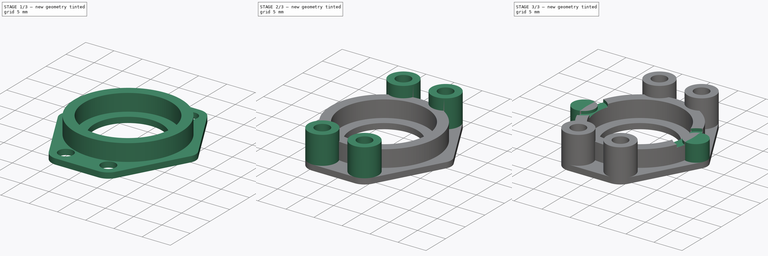
[diagram: build sequence overview — one tinted view per stage of 3, left to right]
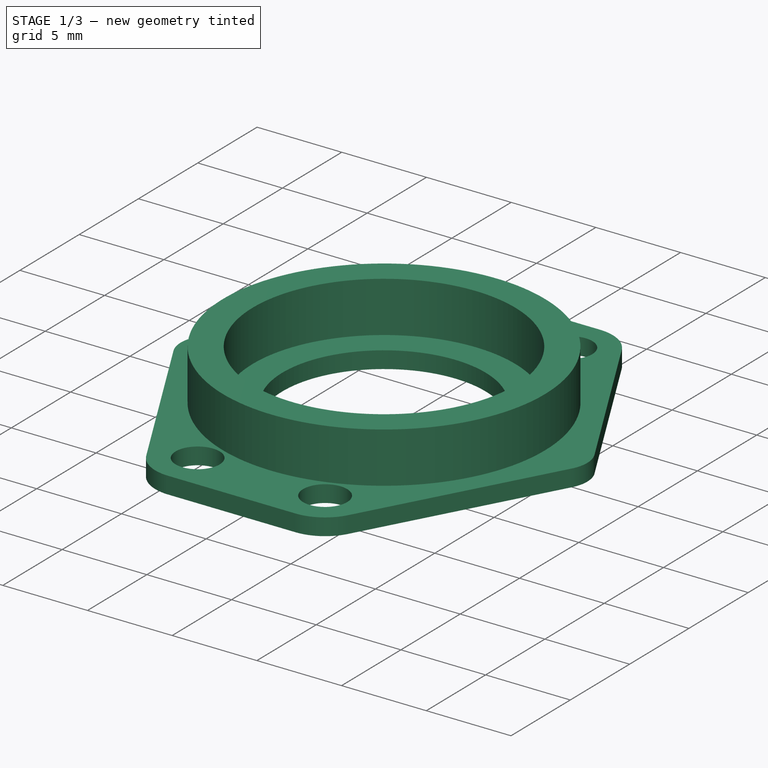
[diagram: stage 1 of 3 — iso view after this stage's code; geometry added in this stage tinted green]
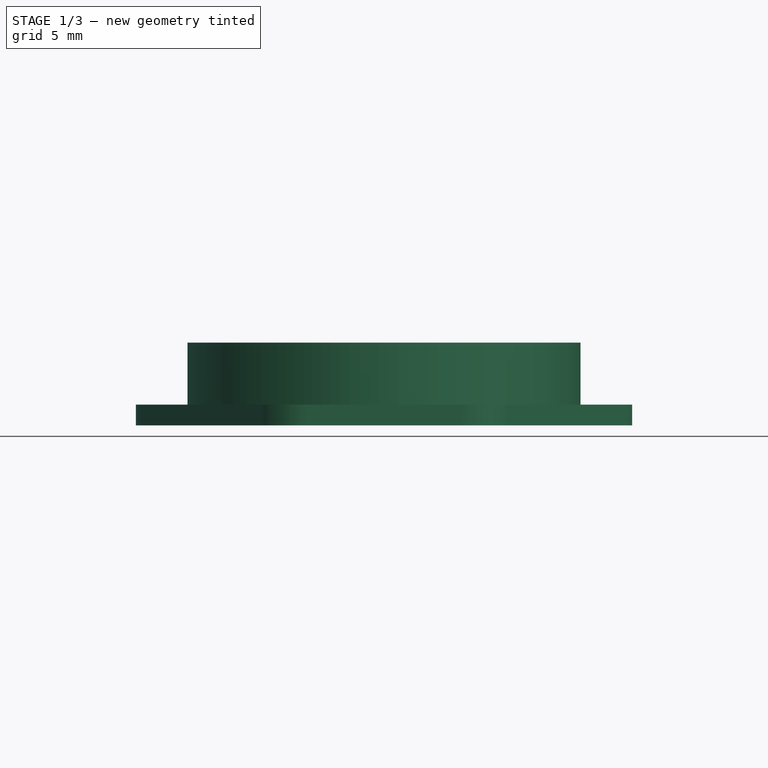
[diagram: stage 1 of 3 — front view after this stage's code; geometry added in this stage tinted green]
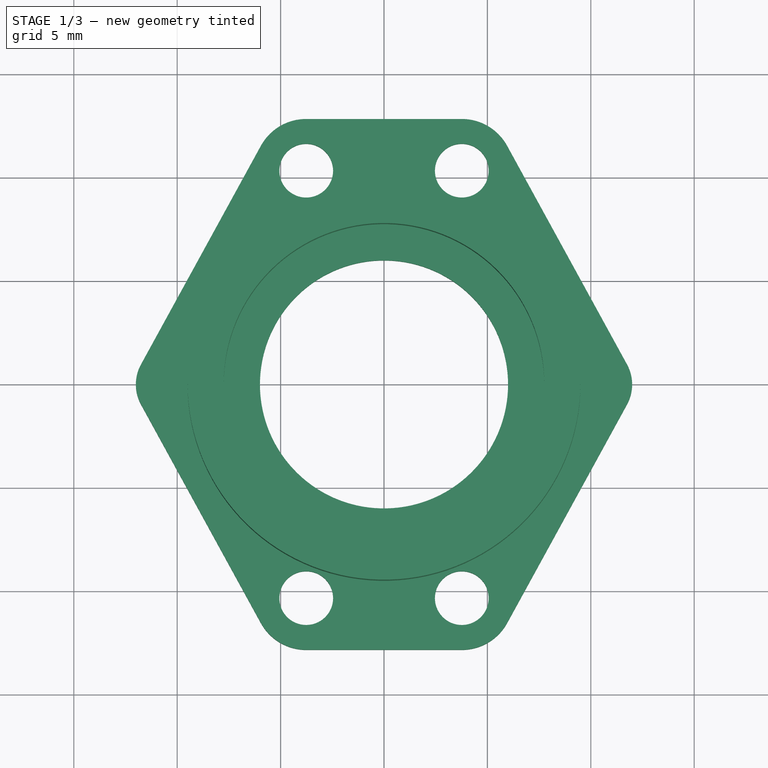
[diagram: stage 1 of 3 — top view after this stage's code; geometry added in this stage tinted green]
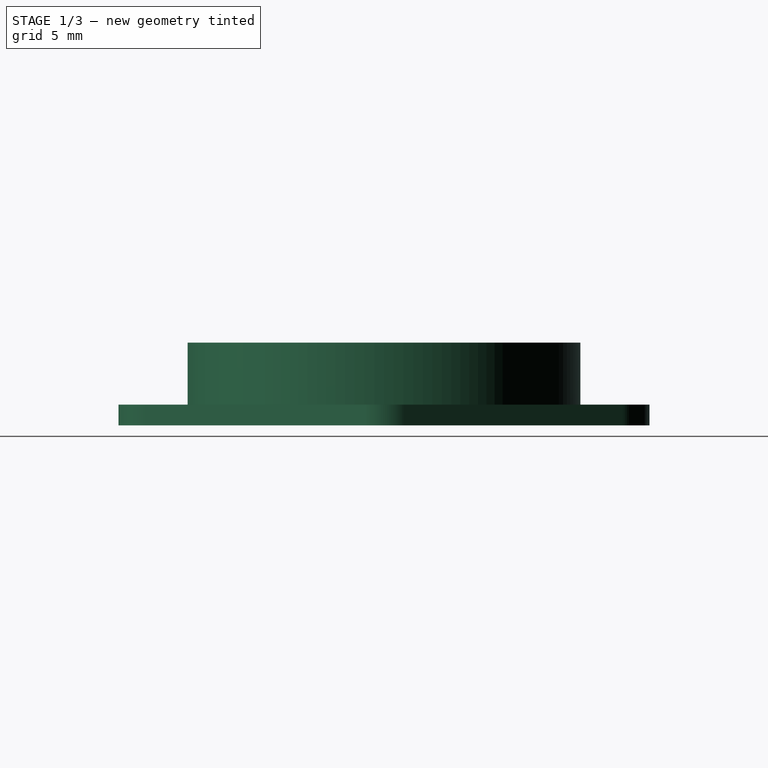
[diagram: stage 1 of 3 — right view after this stage's code; geometry added in this stage tinted green]
FCSTD DOCUMENT  (FreeCAD 0.21R33668 +26 (Git))
Label: magnet_mounter
License: All rights reserved
LicenseURL: http://en.wikipedia.org/wiki/All_rights_reserved
objects: Sketcher::SketchObject×5, PartDesign::Pad×4, PartDesign::Pocket×1, PartDesign::Body×1
note: 16 computed .brp shape members not serialized (recipe doc carries the construction recipe); baked Part::Feature solids carry a one-line shape summary decoded from their .brp

FEATURE [Sketcher::SketchObject] Sketch
  FullyConstrained = true
  MapMode = 5
  Support = -> [XY_Plane]
  sketch-geometry (24):
    g0: Circle CenterX=0 CenterY=0 CenterZ=0 NormalX=0 NormalY=0 NormalZ=1 AngleXU=0 Radius=6
    g1: Circle CenterX=0 CenterY=0 CenterZ=0 NormalX=0 NormalY=0 NormalZ=1 AngleXU=0 Radius=4.5
    g2: Circle CenterX=0 CenterY=0 CenterZ=0 NormalX=0 NormalY=0 NormalZ=1 AngleXU=0 Radius=11
    g3: LineSegment StartX=-3.76222 StartY=10.3366 StartZ=0 EndX=3.76222 EndY=-10.3366 EndZ=0
    g4: LineSegment StartX=3.76222 StartY=10.3366 StartZ=0 EndX=-3.76222 EndY=-10.3366 EndZ=0
    g5: Circle CenterX=0 CenterY=0 CenterZ=0 NormalX=0 NormalY=0 NormalZ=1 AngleXU=0 Radius=10
    g6: LineSegment StartX=-10 StartY=0 StartZ=0 EndX=10 EndY=0 EndZ=0
    g7: Circle CenterX=3.76222 CenterY=10.3366 CenterZ=0 NormalX=0 NormalY=0 NormalZ=1 AngleXU=0 Radius=1.3
    g8: LineSegment StartX=-3.76222 StartY=10.3366 StartZ=0 EndX=3.76222 EndY=10.3366 EndZ=0
    g9: Circle CenterX=-3.76222 CenterY=10.3366 CenterZ=0 NormalX=0 NormalY=0 NormalZ=1 AngleXU=0 Radius=1.3
    g10: Circle CenterX=-3.76222 CenterY=-10.3366 CenterZ=0 NormalX=0 NormalY=0 NormalZ=1 AngleXU=0 Radius=1.3
    g11: Circle CenterX=3.76222 CenterY=-10.3366 CenterZ=0 NormalX=0 NormalY=0 NormalZ=1 AngleXU=0 Radius=1.3
    g12: ArcOfCircle CenterX=-10 CenterY=0 CenterZ=0 NormalX=0 NormalY=0 NormalZ=1 AngleXU=0 Radius=2 StartAngle=2.64006 EndAngle=3.64313
    g13: ArcOfCircle CenterX=10 CenterY=0 CenterZ=0 NormalX=0 NormalY=0 NormalZ=1 AngleXU=0 Radius=2 StartAngle=5.78165 EndAngle=6.78472
    g14: ArcOfCircle CenterX=-3.76222 CenterY=10.3366 CenterZ=0 NormalX=0 NormalY=0 NormalZ=1 AngleXU=0 Radius=2.5 StartAngle=1.5708 EndAngle=2.64006
    g15: ArcOfCircle CenterX=3.76222 CenterY=10.3366 CenterZ=0 NormalX=0 NormalY=0 NormalZ=1 AngleXU=0 Radius=2.5 StartAngle=0.501536 EndAngle=1.5708
    g16: ArcOfCircle CenterX=3.76222 CenterY=-10.3366 CenterZ=0 NormalX=0 NormalY=0 NormalZ=1 AngleXU=0 Radius=2.5 StartAngle=4.71239 EndAngle=5.78165
    g17: ArcOfCircle CenterX=-3.76222 CenterY=-10.3366 CenterZ=0 NormalX=0 NormalY=0 NormalZ=1 AngleXU=0 Radius=2.5 StartAngle=3.64313 EndAngle=4.71239
    g18: LineSegment StartX=-3.76222 StartY=12.8366 StartZ=0 EndX=3.76222 EndY=12.8366 EndZ=0
    g19: LineSegment StartX=5.95433 StartY=11.5386 StartZ=0 EndX=11.7537 EndY=0.961546 EndZ=0
    g20: LineSegment StartX=11.7537 StartY=-0.961546 StartZ=0 EndX=5.95433 EndY=-11.5386 EndZ=0
    g21: LineSegment StartX=3.76222 StartY=-12.8366 StartZ=0 EndX=-3.76222 EndY=-12.8366 EndZ=0
    g22: LineSegment StartX=-5.95433 StartY=-11.5386 StartZ=0 EndX=-11.7537 EndY=-0.961546 EndZ=0
    g23: LineSegment StartX=-11.7537 StartY=0.961546 StartZ=0 EndX=-5.95433 EndY=11.5386 EndZ=0
  constraints (54):
    c: Coincident(g0,g-1)
    c: Diameter(g0) = 12
    c: Coincident(g1,g0)
    c: Diameter(g1) = 9
    c: Coincident(g2,g0)
    c: Diameter(g2) = 22
    c: PointOnObject(g3,g2)
    c: PointOnObject(g3,g2)
    c: PointOnObject(g4,g2)
    c: PointOnObject(g4,g2)
    c: Coincident(g5,g0)
    c: Diameter(g5) = 20
    c: PointOnObject(g0,g3)
    c: PointOnObject(g0,g4)
    c: PointOnObject(g6,g5)
    c: PointOnObject(g6,g5)
    c: PointOnObject(g0,g6)
    c: Horizontal(g6)
    c: Coincident(g7,g4)
    c: Diameter(g7) = 2.6
    c: Angle(g-2,g3) = 0.349066
    c: Coincident(g8,g3)
    c: Coincident(g8,g7)
    c: Horizontal(g8)
    c: Coincident(g9,g3)
    c: Coincident(g10,g4)
    c: Coincident(g11,g3)
    c: Equal(g11,g10)
    c: Equal(g10,g9)
    c: Equal(g9,g7)
    c: Coincident(g12,g6)
    c: Coincident(g13,g6)
    c: Equal(g13,g12)
    c: Diameter(g13) = 4
    c: Coincident(g14,g9)
    c: Coincident(g15,g7)
    c: Coincident(g16,g11)
    c: Coincident(g17,g10)
    c: Equal(g17,g16)
    c: Equal(g16,g15)
    c: Equal(g15,g14)
    c: Diameter(g15) = 5
    c: Tangent(g15,g19) = 1.5708
    c: Tangent(g15,g18) = 1.5708
    c: Tangent(g13,g19) = 1.5708
    c: Tangent(g13,g20) = 1.5708
    c: Tangent(g16,g20) = 1.5708
    c: Tangent(g16,g21) = 1.5708
    c: Tangent(g17,g21) = 1.5708
    c: Tangent(g17,g22) = 1.5708
    c: Tangent(g12,g22) = 1.5708
    c: Tangent(g12,g23) = 1.5708
    c: Tangent(g14,g23) = 1.5708
    c: Tangent(g14,g18) = 1.5708
FEATURE [PartDesign::Pad] Pad
  Direction = (0,0,1)
  Length = 1
  Length2 = 10
  Profile = -> Sketch
  ReferenceAxis = -> Sketch [N_Axis]
  Type = 0
FEATURE [Sketcher::SketchObject] Sketch001
  ExternalGeometry = -> [Pad]
  FullyConstrained = true
  MapMode = 5
  Placement = pos=(0,0,1) rot=(0,0,1;0rad)
  Support = -> [Pad]
  sketch-geometry (2):
    g0: Circle CenterX=0 CenterY=0 CenterZ=0 NormalX=0 NormalY=0 NormalZ=1 AngleXU=0 Radius=9.5
    g1: Circle CenterX=0 CenterY=0 CenterZ=0 NormalX=0 NormalY=0 NormalZ=1 AngleXU=0 Radius=7.75
  constraints (4):
    c: Coincident(g0,g-1)
    c: Diameter(g0) = 19
    c: Coincident(g1,g0)
    c: Diameter(g1) = 15.5
FEATURE [PartDesign::Pad] Pad001
  BaseFeature = -> Pad
  Direction = (0,0,1)
  Length = 3
  Length2 = 10
  Profile = -> Sketch001
  ReferenceAxis = -> Sketch001 [N_Axis]
  Type = 0
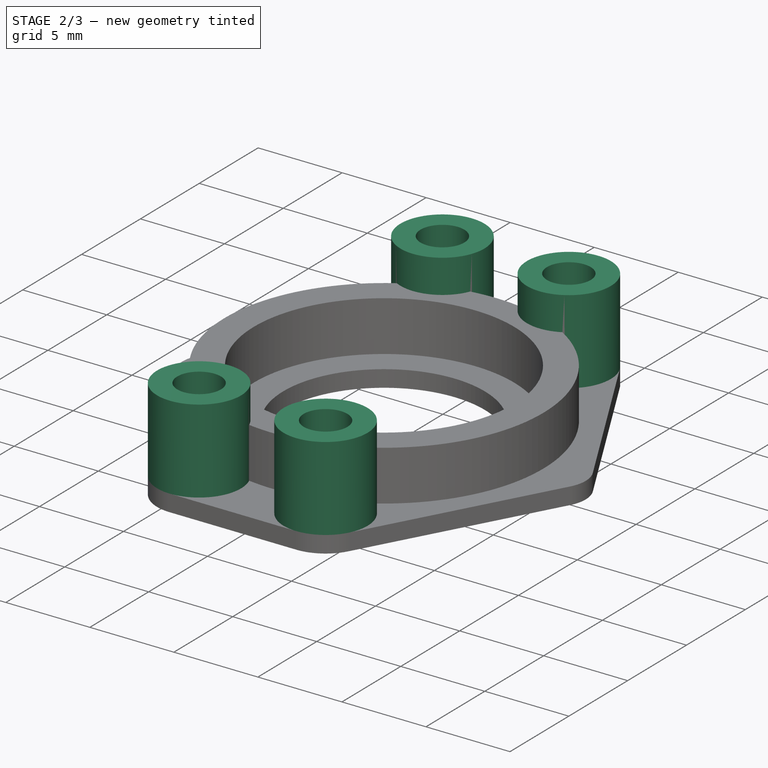
[diagram: stage 2 of 3 — iso view after this stage's code; geometry added in this stage tinted green]
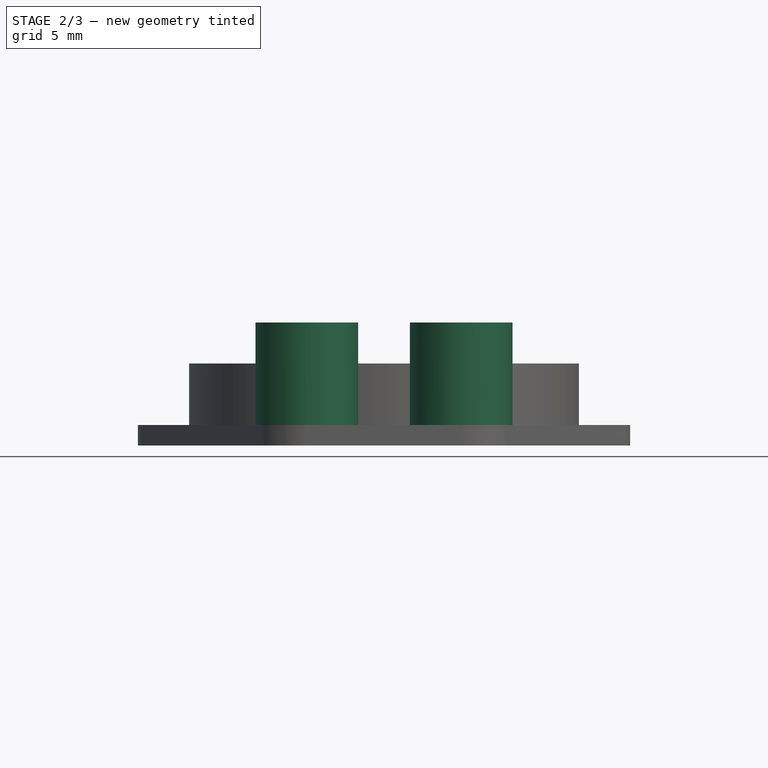
[diagram: stage 2 of 3 — front view after this stage's code; geometry added in this stage tinted green]
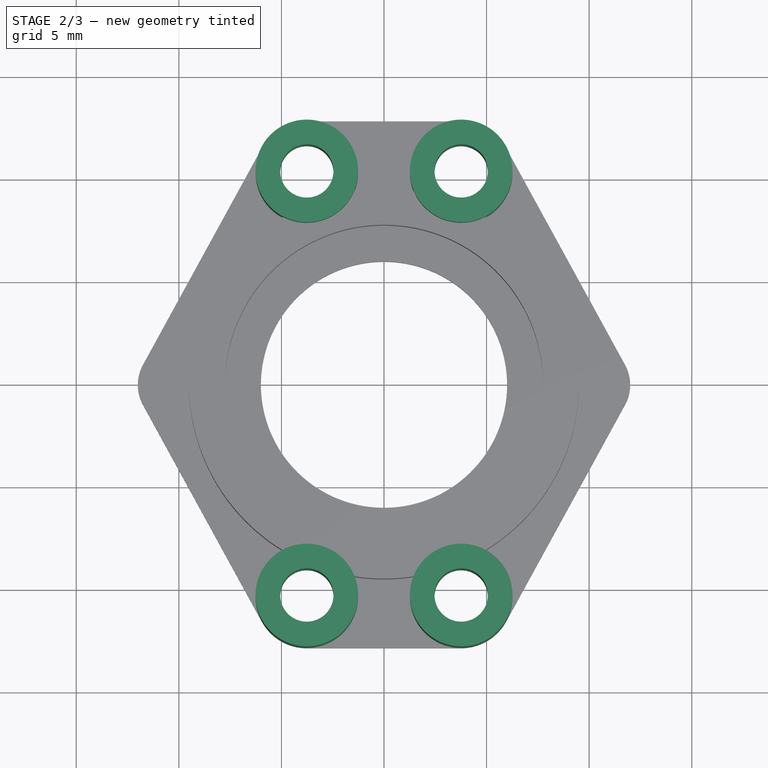
[diagram: stage 2 of 3 — top view after this stage's code; geometry added in this stage tinted green]
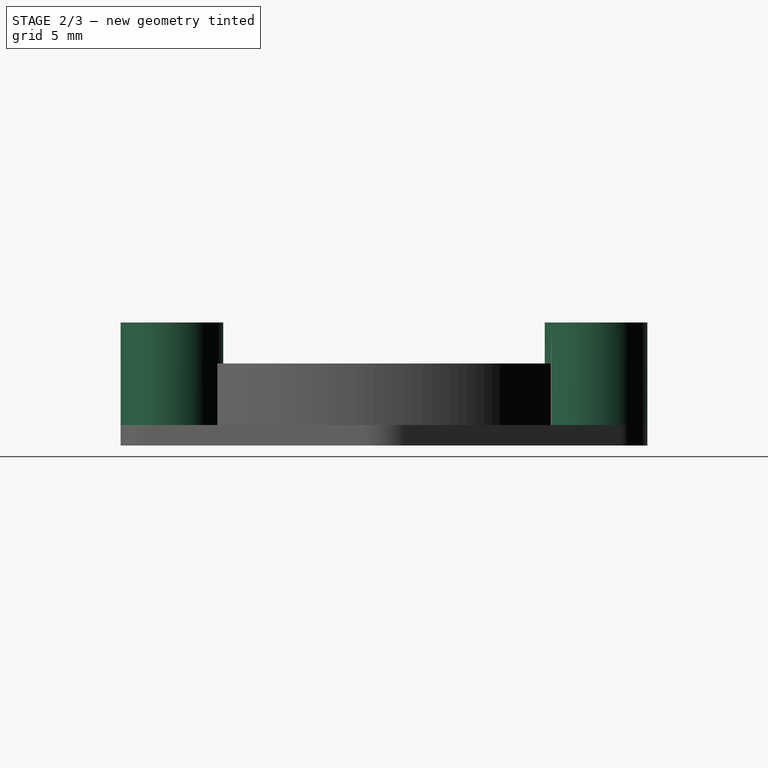
[diagram: stage 2 of 3 — right view after this stage's code; geometry added in this stage tinted green]
FEATURE [Sketcher::SketchObject] Sketch002
  ExternalGeometry = -> [Pad001]
  FullyConstrained = true
  MapMode = 5
  Placement = pos=(0,0,1) rot=(0,0,1;0rad)
  Support = -> [Pad001]
  sketch-geometry (8):
    g0: Circle CenterX=-3.76222 CenterY=10.3366 CenterZ=0 NormalX=0 NormalY=0 NormalZ=1 AngleXU=0 Radius=2.5
    g1: Circle CenterX=3.76222 CenterY=10.3366 CenterZ=0 NormalX=0 NormalY=0 NormalZ=1 AngleXU=0 Radius=2.5
    g2: Circle CenterX=-3.76222 CenterY=-10.3366 CenterZ=0 NormalX=0 NormalY=0 NormalZ=1 AngleXU=0 Radius=2.5
    g3: Circle CenterX=3.76222 CenterY=-10.3366 CenterZ=0 NormalX=0 NormalY=0 NormalZ=1 AngleXU=0 Radius=2.5
    g4: Circle CenterX=3.76222 CenterY=10.3366 CenterZ=0 NormalX=0 NormalY=0 NormalZ=1 AngleXU=0 Radius=1.3
    g5: Circle CenterX=-3.76222 CenterY=10.3366 CenterZ=0 NormalX=0 NormalY=0 NormalZ=1 AngleXU=0 Radius=1.3
    g6: Circle CenterX=-3.76222 CenterY=-10.3366 CenterZ=0 NormalX=0 NormalY=0 NormalZ=1 AngleXU=0 Radius=1.3
    g7: Circle CenterX=3.76222 CenterY=-10.3366 CenterZ=0 NormalX=0 NormalY=0 NormalZ=1 AngleXU=0 Radius=1.3
  constraints (16):
    c: Coincident(g0,g-3)
    c: Coincident(g1,g-4)
    c: Coincident(g2,g-6)
    c: Coincident(g3,g-5)
    c: Coincident(g4,g1)
    c: Equal(g4,g-4)
    c: Coincident(g5,g0)
    c: Coincident(g6,g2)
    c: Coincident(g7,g3)
    c: Equal(g5,g-3)
    c: Equal(g6,g-6)
    c: Equal(g7,g-5)
    c: Equal(g1,g0)
    c: Equal(g0,g2)
    c: Equal(g2,g3)
    c: Equal(g1,g-7)
FEATURE [PartDesign::Pad] Pad002
  BaseFeature = -> Pad001
  Direction = (0,0,1)
  Length = 5
  Length2 = 10
  Profile = -> Sketch002
  ReferenceAxis = -> Sketch002 [N_Axis]
  Type = 0
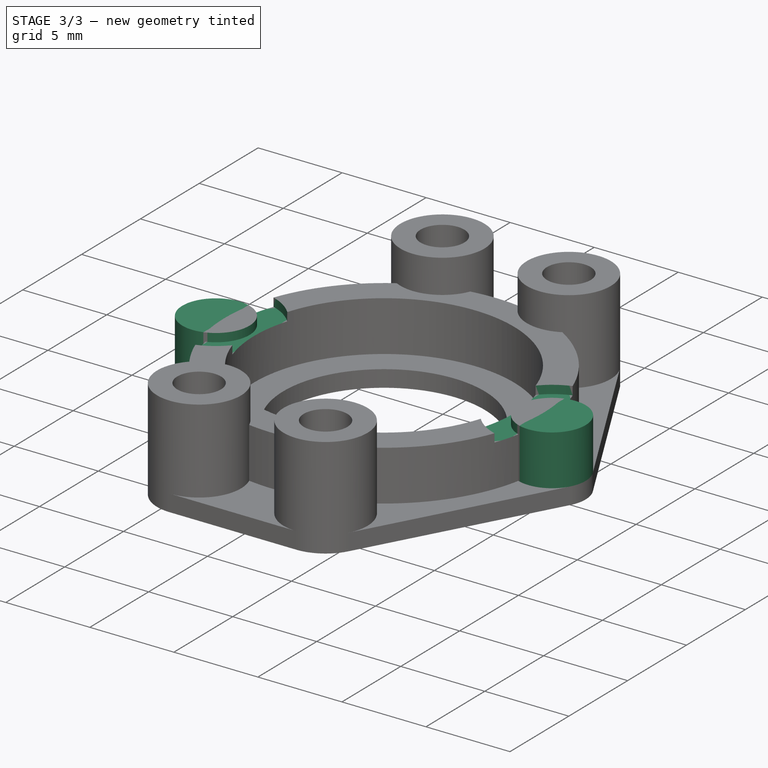
[diagram: stage 3 of 3 — iso view after this stage's code; geometry added in this stage tinted green]
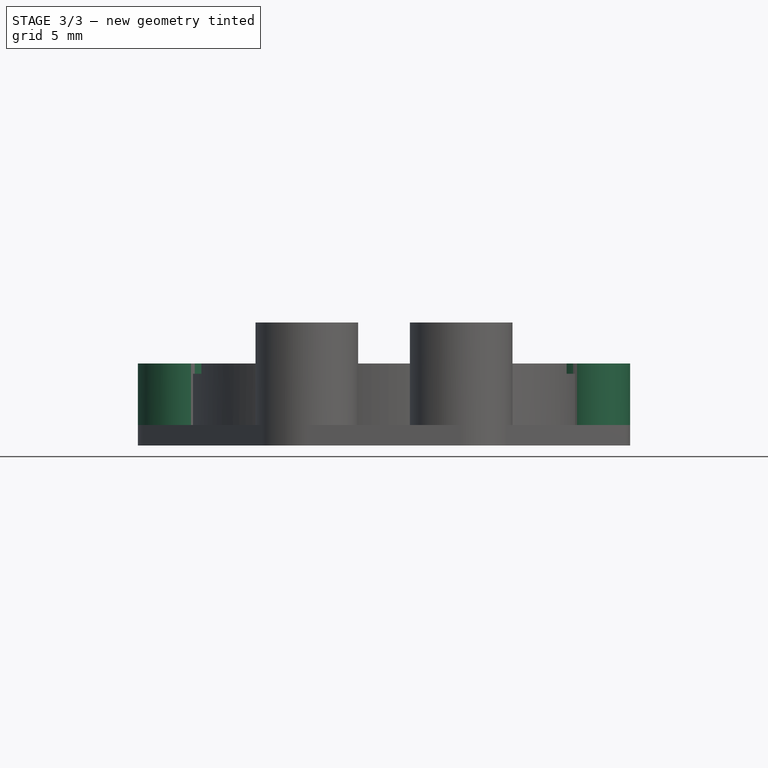
[diagram: stage 3 of 3 — front view after this stage's code; geometry added in this stage tinted green]
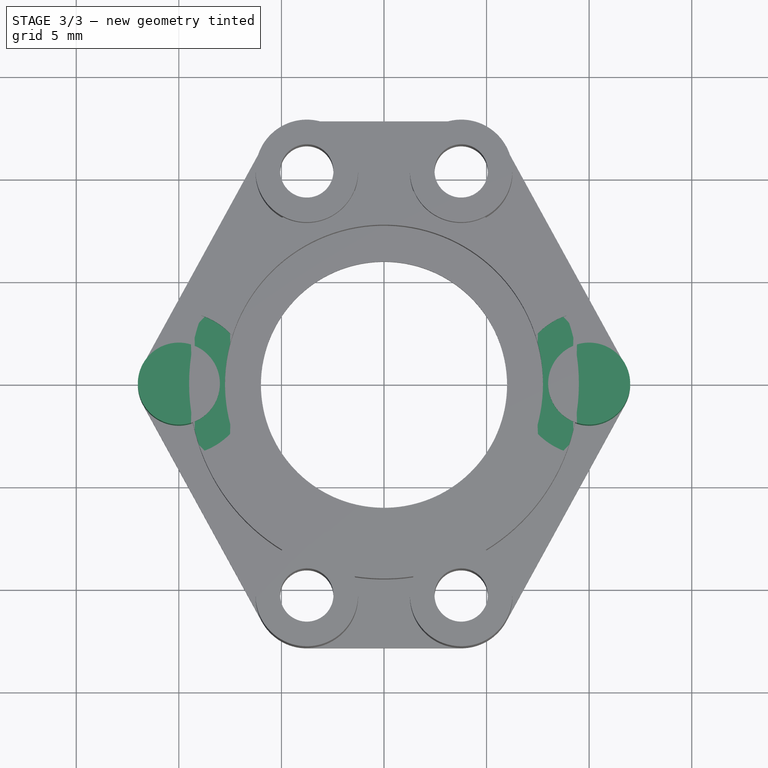
[diagram: stage 3 of 3 — top view after this stage's code; geometry added in this stage tinted green]
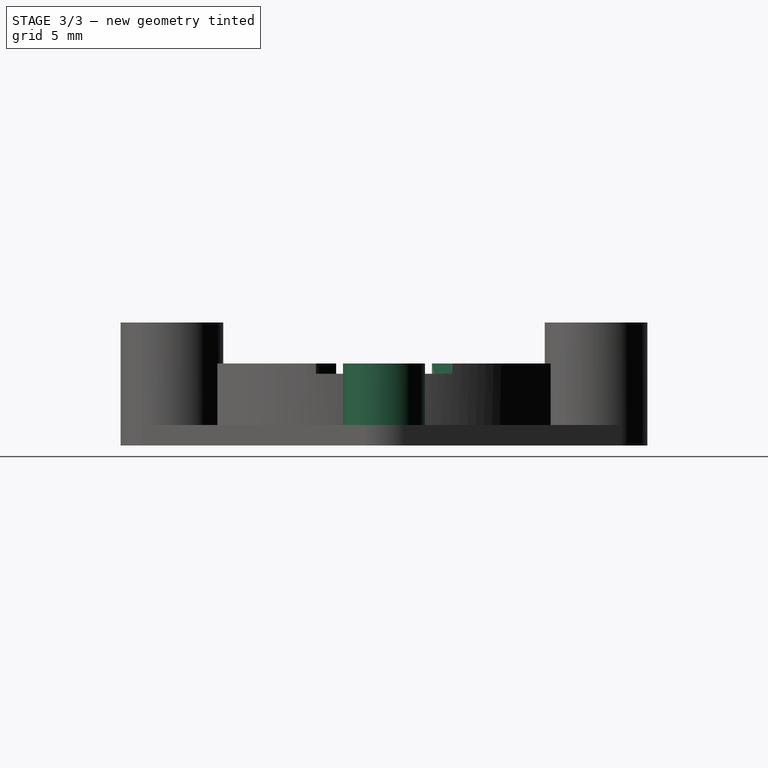
[diagram: stage 3 of 3 — right view after this stage's code; geometry added in this stage tinted green]
FEATURE [Sketcher::SketchObject] Sketch003
  ExternalGeometry = -> [Pad002]
  FullyConstrained = true
  MapMode = 5
  Placement = pos=(0,0,1) rot=(0,0,1;0rad)
  Support = -> [Pad002]
  sketch-geometry (2):
    g0: Circle CenterX=-10 CenterY=0 CenterZ=0 NormalX=0 NormalY=0 NormalZ=1 AngleXU=0 Radius=2
    g1: Circle CenterX=10 CenterY=0 CenterZ=0 NormalX=0 NormalY=0 NormalZ=1 AngleXU=0 Radius=2
  constraints (4):
    c: Coincident(g0,g-3)
    c: Equal(g0,g-3)
    c: Coincident(g1,g-4)
    c: Equal(g-4,g1)
FEATURE [PartDesign::Pad] Pad003
  BaseFeature = -> Pad002
  Direction = (0,0,1)
  Length = 3
  Length2 = 10
  Profile = -> Sketch003
  ReferenceAxis = -> Sketch003 [N_Axis]
  Type = 0
FEATURE [Sketcher::SketchObject] Sketch004
  ExternalGeometry = -> [Pad003]
  FullyConstrained = true
  MapMode = 5
  Placement = pos=(0,0,4) rot=(0,0,1;0rad)
  Support = -> [Pad003]
  sketch-geometry (4):
    g0: Circle CenterX=-10 CenterY=0 CenterZ=0 NormalX=0 NormalY=0 NormalZ=1 AngleXU=0 Radius=3.5
    g1: Circle CenterX=-10 CenterY=0 CenterZ=0 NormalX=0 NormalY=0 NormalZ=1 AngleXU=0 Radius=2
    g2: Circle CenterX=10 CenterY=0 CenterZ=0 NormalX=0 NormalY=0 NormalZ=1 AngleXU=0 Radius=2
    g3: Circle CenterX=10 CenterY=0 CenterZ=0 NormalX=0 NormalY=0 NormalZ=1 AngleXU=0 Radius=3.5
  constraints (8):
    c: Coincident(g0,g-3)
    c: Coincident(g1,g0)
    c: Equal(g1,g-3)
    c: Diameter(g0) = 7
    c: Coincident(g2,g-4)
    c: Equal(g2,g-4)
    c: Coincident(g3,g2)
    c: Equal(g3,g0)
FEATURE [PartDesign::Pocket] Pocket
  BaseFeature = -> Pad003
  Direction = (0,0,-1)
  Length = 0.5
  Length2 = 5
  Profile = -> Sketch004
  ReferenceAxis = -> Sketch004 [N_Axis]
  Type = 0
FEATURE [PartDesign::Body] Body
  Group = -> [Sketch,Pad,Sketch001,Pad001,Sketch002,Pad002,Sketch003,Pad003,Sketch004,Pocket]
  Origin = -> Origin
  Tip = -> Pocket
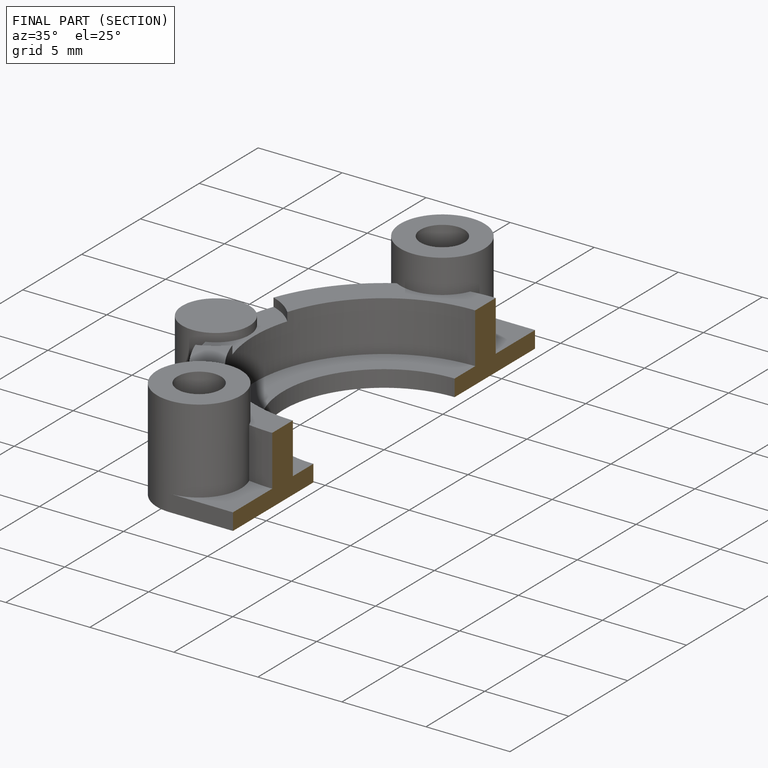
[diagram: finished part — half-section view (interior)]
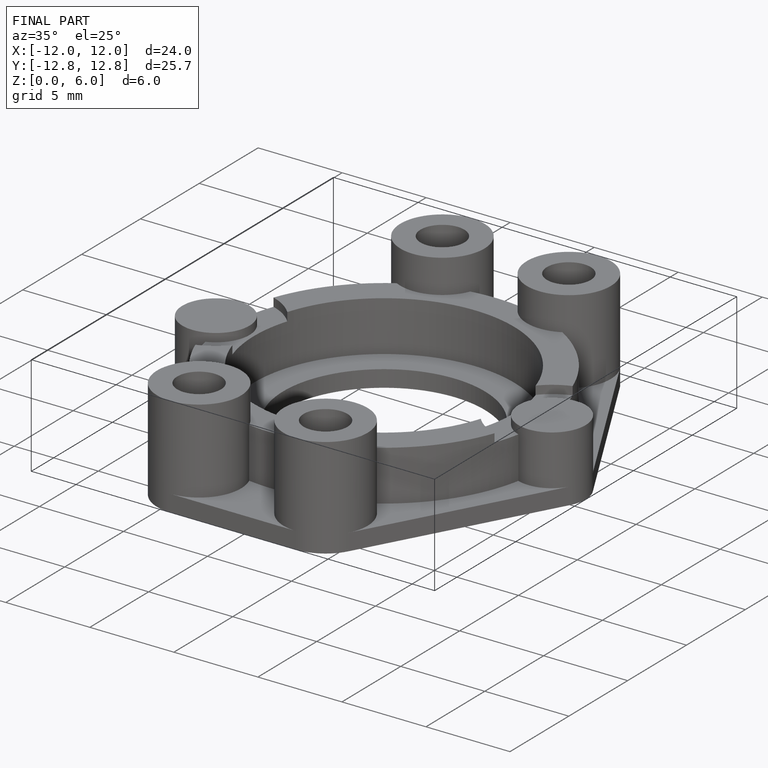
[diagram: finished part — iso view with bounding-box wireframe]
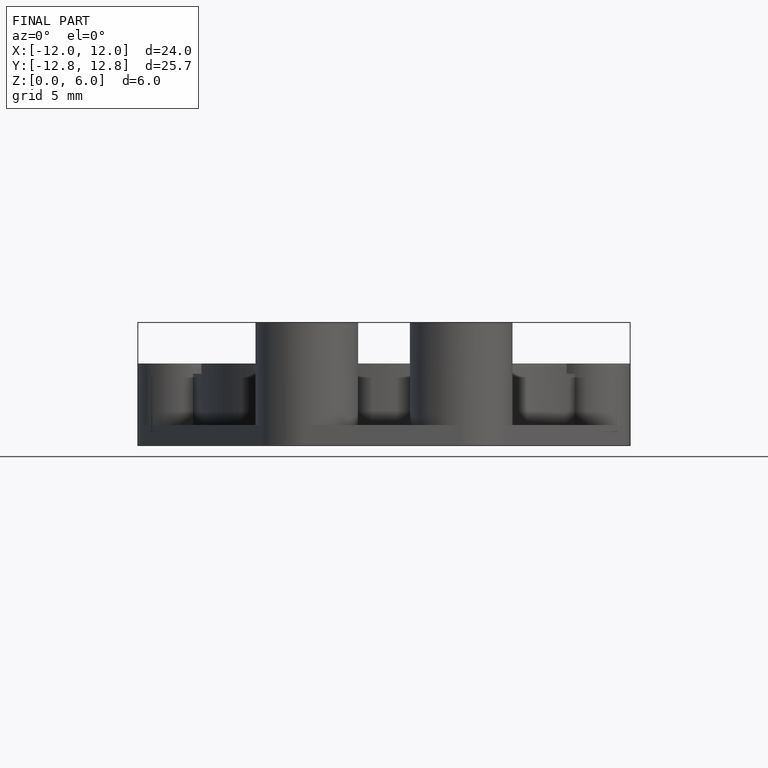
[diagram: finished part — front view with bounding-box wireframe]
